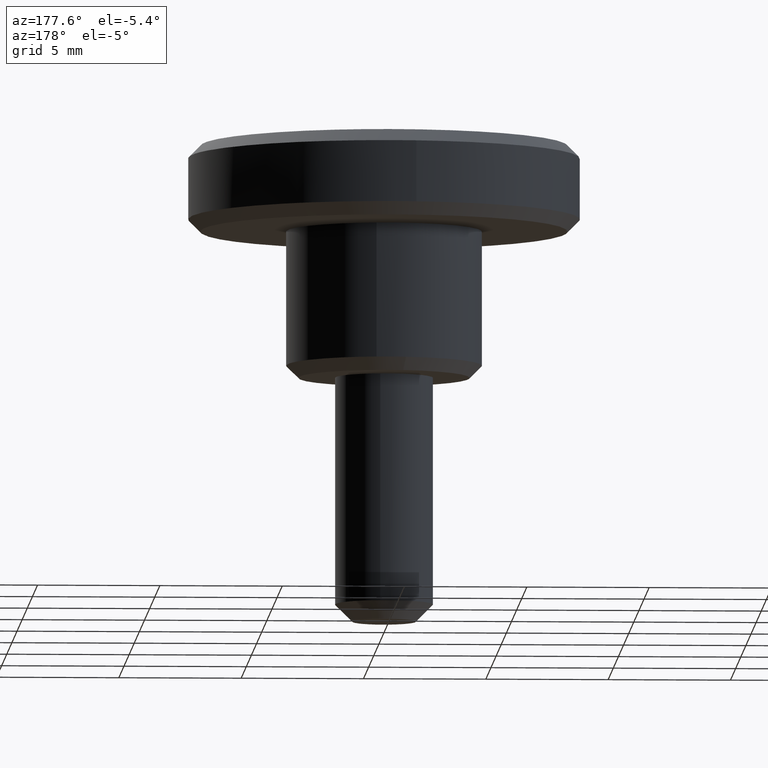
[diagram: clean part render]
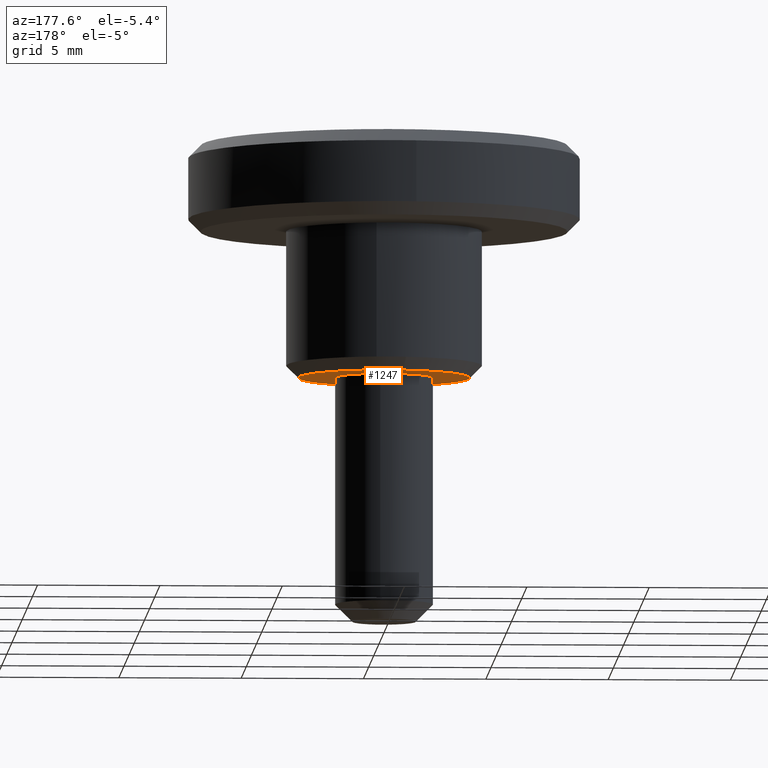
[diagram: same view with one face highlighted and labeled with its STEP entity id]
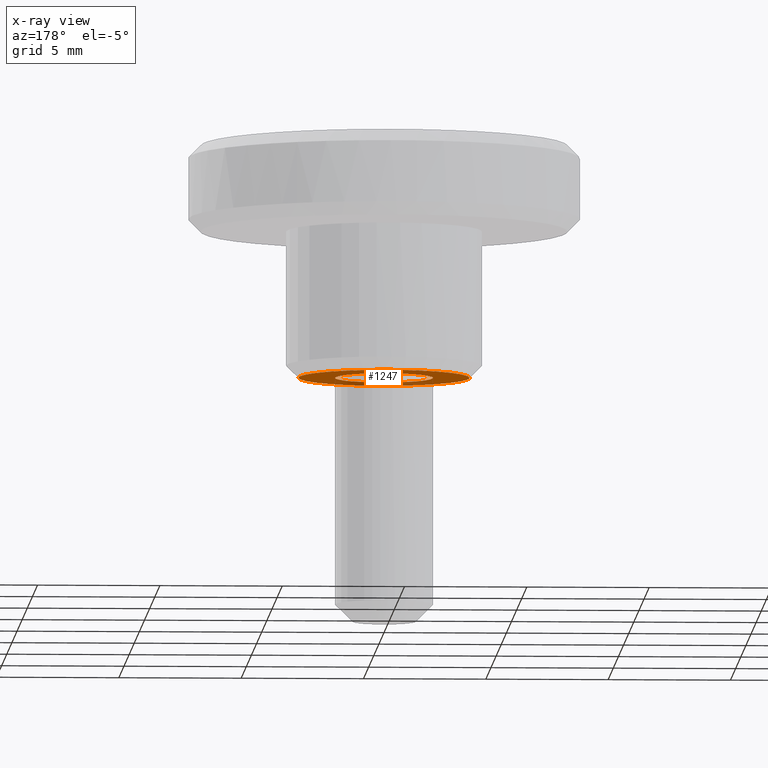
[diagram: x-ray of the same camera — body ghosted, the highlighted face saturated]
A machine part, auxiliary view. The second image highlights one B-rep face of the part: STEP entity #1247.
The next image is the same camera in x-ray: the body ghosted, the highlighted face saturated — about 21% of this face is hidden behind the body in this view.
In plain terms, the highlighted face is a freeform B-spline surface patch.
Its self-contained STEP definition (entity closure, byte-faithful):
#285=CARTESIAN_POINT('',(-0.122097079089674,-1.996269596842428,2.775558E-017));
#286=VERTEX_POINT('',#285);
#292=CARTESIAN_POINT('',(-1.999999999999915,0.0,0.0));
#293=VERTEX_POINT('',#292);
#294=CARTESIAN_POINT('',(-1.999999999999915,0.0,0.0));
#295=CARTESIAN_POINT('',(-1.999999999999915,-1.881412133773602,0.0));
#296=CARTESIAN_POINT('',(-0.122097079089674,-1.996269596842428,2.775558E-017));
#304=(BOUNDED_CURVE()B_SPLINE_CURVE(2,(#294,#295,#296),.UNSPECIFIED.,.F.,.U.)B_SPLINE_CURVE_WITH_KNOTS((3,3),(0.500000000000000,0.739332962238517),.UNSPECIFIED.)CURVE()GEOMETRIC_REPRESENTATION_ITEM()RATIONAL_B_SPLINE_CURVE((1.0,0.719603993287210,0.976072041665804))REPRESENTATION_ITEM(''));
#305=EDGE_CURVE('',#293,#286,#304,.T.);
#307=CARTESIAN_POINT('',(0.236068469329334,1.986019052725367,1.419714E-017));
#308=VERTEX_POINT('',#307);
#309=CARTESIAN_POINT('',(0.236068469329334,1.986019052725367,1.419714E-017));
#310=CARTESIAN_POINT('',(0.118448239319809,1.999999999999915,0.0));
#311=CARTESIAN_POINT('',(0.0,1.999999999999915,0.0));
#312=CARTESIAN_POINT('',(-1.999999999999915,1.999999999999915,0.0));
#313=CARTESIAN_POINT('',(-1.999999999999915,0.0,0.0));
#321=(BOUNDED_CURVE()B_SPLINE_CURVE(2,(#309,#310,#311,#312,#313),.UNSPECIFIED.,.F.,.U.)B_SPLINE_CURVE_WITH_KNOTS((3,2,3),(0.229562473512951,0.250000000000000,0.500000000000000),.UNSPECIFIED.)CURVE()GEOMETRIC_REPRESENTATION_ITEM()RATIONAL_B_SPLINE_CURVE((0.956026754182606,0.976055948330492,1.0,0.707106781186548,1.0))REPRESENTATION_ITEM(''));
#322=EDGE_CURVE('',#308,#293,#321,.T.);
#352=CARTESIAN_POINT('',(1.999999999999915,0.0,0.0));
#353=VERTEX_POINT('',#352);
#354=CARTESIAN_POINT('',(1.999999999999915,0.0,0.0));
#355=CARTESIAN_POINT('',(1.999999999999915,1.776349051874147,0.0));
#356=CARTESIAN_POINT('',(0.236068469329334,1.986019052725367,1.419714E-017));
#364=(BOUNDED_CURVE()B_SPLINE_CURVE(2,(#354,#355,#356),.UNSPECIFIED.,.F.,.U.)B_SPLINE_CURVE_WITH_KNOTS((3,3),(0.0,0.229562473512951),.UNSPECIFIED.)CURVE()GEOMETRIC_REPRESENTATION_ITEM()RATIONAL_B_SPLINE_CURVE((1.0,0.731050832856056,0.956026754182606))REPRESENTATION_ITEM(''));
#365=EDGE_CURVE('',#353,#308,#364,.T.);
#367=CARTESIAN_POINT('',(-0.122097079089674,-1.996269596842428,2.775558E-017));
#368=CARTESIAN_POINT('',(-0.061105526617197,-1.999999999999915,0.0));
#369=CARTESIAN_POINT('',(0.0,-1.999999999999915,0.0));
#370=CARTESIAN_POINT('',(1.999999999999915,-1.999999999999915,0.0));
#371=CARTESIAN_POINT('',(1.999999999999915,0.0,0.0));
#379=(BOUNDED_CURVE()B_SPLINE_CURVE(2,(#367,#368,#369,#370,#371),.UNSPECIFIED.,.F.,.U.)B_SPLINE_CURVE_WITH_KNOTS((3,2,3),(0.739332962238517,0.750000000000000,1.0),.UNSPECIFIED.)CURVE()GEOMETRIC_REPRESENTATION_ITEM()RATIONAL_B_SPLINE_CURVE((0.976072041665805,0.987502787899338,1.0,0.707106781186548,1.0))REPRESENTATION_ITEM(''));
#380=EDGE_CURVE('',#286,#353,#379,.T.);
#840=CARTESIAN_POINT('',(-0.640932701404273,3.440814623355592,3.950849E-012));
#841=VERTEX_POINT('',#840);
#847=CARTESIAN_POINT('',(-3.499999999999915,0.0,0.0));
#848=VERTEX_POINT('',#847);
#849=CARTESIAN_POINT('',(-3.499999999999915,0.0,0.0));
#850=CARTESIAN_POINT('',(-3.499999999999915,2.908246052280505,0.0));
#851=CARTESIAN_POINT('',(-0.640932701404273,3.440814623355592,3.950849E-012));
#859=(BOUNDED_CURVE()B_SPLINE_CURVE(2,(#849,#850,#851),.UNSPECIFIED.,.F.,.U.)B_SPLINE_CURVE_WITH_KNOTS((3,3),(0.500000000000000,0.718554736283687),.UNSPECIFIED.)CURVE()GEOMETRIC_REPRESENTATION_ITEM()RATIONAL_B_SPLINE_CURVE((1.0,0.743947199211783,0.935586817231312))REPRESENTATION_ITEM(''));
#860=EDGE_CURVE('',#848,#841,#859,.T.);
#862=CARTESIAN_POINT('',(0.030542874245997,-3.499866730724729,2.288360E-013));
#863=VERTEX_POINT('',#862);
#864=CARTESIAN_POINT('',(0.030542874245997,-3.499866730724729,2.288360E-013));
#865=CARTESIAN_POINT('',(0.015271727874142,-3.499999999999915,0.0));
#866=CARTESIAN_POINT('',(0.0,-3.499999999999915,0.0));
#867=CARTESIAN_POINT('',(-3.499999999999915,-3.499999999999915,0.0));
#868=CARTESIAN_POINT('',(-3.499999999999915,0.0,0.0));
#876=(BOUNDED_CURVE()B_SPLINE_CURVE(2,(#864,#865,#866,#867,#868),.UNSPECIFIED.,.F.,.U.)B_SPLINE_CURVE_WITH_KNOTS((3,2,3),(0.248460105664843,0.250000000000000,0.500000000000000),.UNSPECIFIED.)CURVE()GEOMETRIC_REPRESENTATION_ITEM()RATIONAL_B_SPLINE_CURVE((0.996414028100013,0.998195901566173,1.0,0.707106781186547,1.0))REPRESENTATION_ITEM(''));
#877=EDGE_CURVE('',#863,#848,#876,.T.);
#987=CARTESIAN_POINT('',(3.499999999999915,0.0,0.0));
#988=VERTEX_POINT('',#987);
#989=CARTESIAN_POINT('',(3.499999999999915,0.0,0.0));
#990=CARTESIAN_POINT('',(3.499999999999914,-3.469589237078992,0.0));
#991=CARTESIAN_POINT('',(0.030542874245997,-3.499866730724729,2.288360E-013));
#999=(BOUNDED_CURVE()B_SPLINE_CURVE(2,(#989,#990,#991),.UNSPECIFIED.,.F.,.U.)B_SPLINE_CURVE_WITH_KNOTS((3,3),(0.0,0.248460105664843),.UNSPECIFIED.)CURVE()GEOMETRIC_REPRESENTATION_ITEM()RATIONAL_B_SPLINE_CURVE((1.0,0.708910879620374,0.996414028100012))REPRESENTATION_ITEM(''));
#1000=EDGE_CURVE('',#988,#863,#999,.T.);
#1002=CARTESIAN_POINT('',(-0.640932701404273,3.440814623355592,3.950849E-012));
#1003=CARTESIAN_POINT('',(-0.323199015786998,3.499999999999915,0.0));
#1004=CARTESIAN_POINT('',(0.0,3.499999999999915,0.0));
#1005=CARTESIAN_POINT('',(3.499999999999915,3.499999999999915,0.0));
#1006=CARTESIAN_POINT('',(3.499999999999915,0.0,0.0));
#1014=(BOUNDED_CURVE()B_SPLINE_CURVE(2,(#1002,#1003,#1004,#1005,#1006),.UNSPECIFIED.,.F.,.U.)B_SPLINE_CURVE_WITH_KNOTS((3,2,3),(0.718554736283686,0.750000000000000,1.0),.UNSPECIFIED.)CURVE()GEOMETRIC_REPRESENTATION_ITEM()RATIONAL_B_SPLINE_CURVE((0.935586817231310,0.963159581974764,1.0,0.707106781186547,1.0))REPRESENTATION_ITEM(''));
#1015=EDGE_CURVE('',#841,#988,#1014,.T.);
#1230=CARTESIAN_POINT('',(-3.849649986432548,-3.849503510386246,0.0));
#1231=CARTESIAN_POINT('',(3.849650174187179,-3.849503510386246,0.0));
#1232=CARTESIAN_POINT('',(-3.849649986432548,3.849505262762802,0.0));
#1233=CARTESIAN_POINT('',(3.849650174187179,3.849505262762802,0.0));
#1234=B_SPLINE_SURFACE_WITH_KNOTS('',1,1,((#1230,#1232),(#1231,#1233)),.UNSPECIFIED.,.F.,.F.,.U.,(2,2),(2,2),(0.0,7.699300160619726),(0.0,7.699008773149048),.UNSPECIFIED.);
#1235=ORIENTED_EDGE('',*,*,#1000,.T.);
#1236=ORIENTED_EDGE('',*,*,#877,.T.);
#1237=ORIENTED_EDGE('',*,*,#860,.T.);
#1238=ORIENTED_EDGE('',*,*,#1015,.T.);
#1239=EDGE_LOOP('',(#1235,#1236,#1237,#1238));
#1240=FACE_OUTER_BOUND('',#1239,.T.);
#1241=ORIENTED_EDGE('',*,*,#305,.T.);
#1242=ORIENTED_EDGE('',*,*,#380,.T.);
#1243=ORIENTED_EDGE('',*,*,#365,.T.);
#1244=ORIENTED_EDGE('',*,*,#322,.T.);
#1245=EDGE_LOOP('',(#1241,#1242,#1243,#1244));
#1246=FACE_BOUND('',#1245,.T.);
#1247=ADVANCED_FACE('',(#1240,#1246),#1234,.F.);